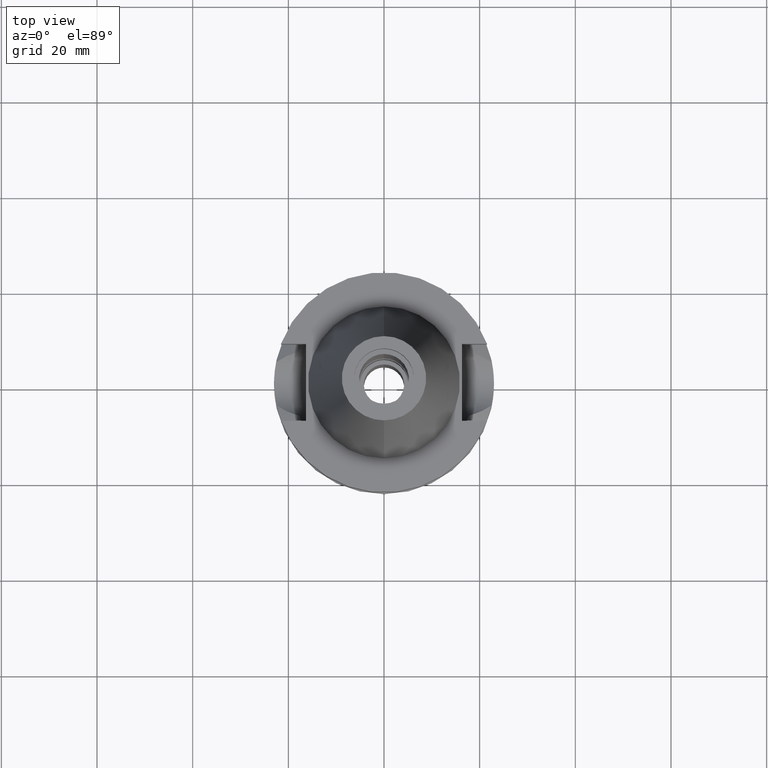
[diagram: clean part render]
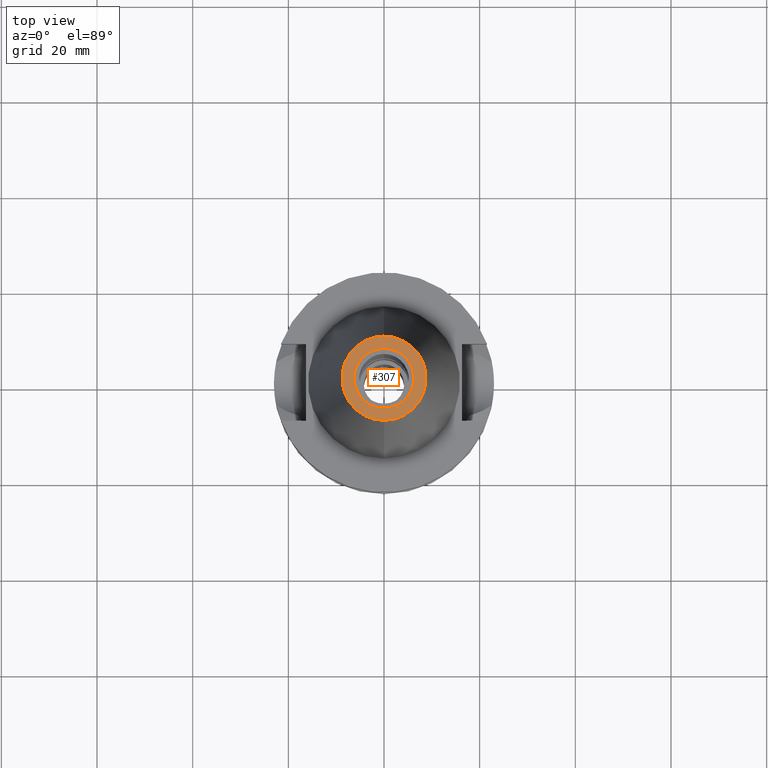
[diagram: same view with one face highlighted and labeled with its STEP entity id]
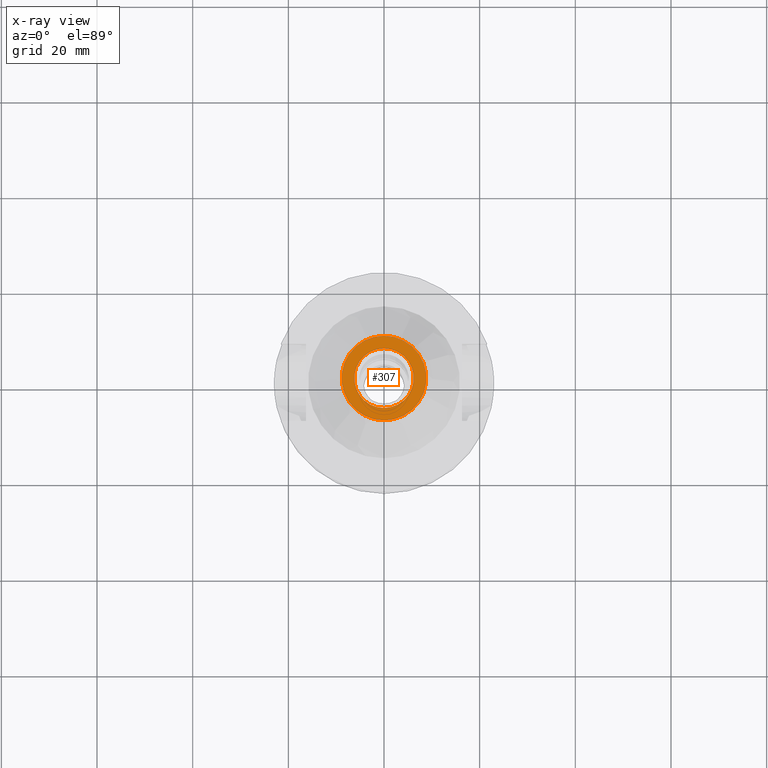
[diagram: x-ray of the same camera — body ghosted, the highlighted face saturated]
A machine part, top view. The second image highlights one B-rep face of the part: STEP entity #307.
The next image is the same camera in x-ray: the body ghosted, the highlighted face saturated — about 0% of this face is hidden behind the body in this view.
In plain terms, the highlighted planar face has unit normal (0, 0, -1).
Its self-contained STEP definition (entity closure, byte-faithful):
#42 = CARTESIAN_POINT ( 'NONE',  ( 0.0000000000000000000, 1.521011324540999938E-14, 48.39999999999999858 ) ) ;
#152 = FACE_BOUND ( 'NONE', #1157, .T. ) ;
#160 = EDGE_CURVE ( 'NONE', #2453, #1522, #2528, .T. ) ;
#307 = ADVANCED_FACE ( 'NONE', ( #1078, #152 ), #2783, .F. ) ;
#491 = AXIS2_PLACEMENT_3D ( 'NONE', #42, #2411, #1480 ) ;
#512 = CARTESIAN_POINT ( 'NONE',  ( 0.0000000000000000000, 1.896610497840000171E-14, 48.39999999999999858 ) ) ;
#627 = CARTESIAN_POINT ( 'NONE',  ( 0.0000000000000000000, 1.521011324540999938E-14, 48.39999999999999858 ) ) ;
#655 = DIRECTION ( 'NONE',  ( 0.0000000000000000000, 0.0000000000000000000, -1.000000000000000000 ) ) ;
#656 = EDGE_CURVE ( 'NONE', #1522, #2453, #2561, .T. ) ;
#694 = DIRECTION ( 'NONE',  ( 0.0000000000000000000, 1.000000000000000000, 0.0000000000000000000 ) ) ;
#759 = DIRECTION ( 'NONE',  ( 0.0000000000000000000, 1.000000000000000000, 0.0000000000000000000 ) ) ;
#855 = ORIENTED_EDGE ( 'NONE', *, *, #160, .F. ) ;
#894 = CIRCLE ( 'NONE', #2635, 6.250000000000000000 ) ;
#924 = VERTEX_POINT ( 'NONE', #2349 ) ;
#1006 = DIRECTION ( 'NONE',  ( 0.0000000000000000000, 0.0000000000000000000, 1.000000000000000000 ) ) ;
#1078 = FACE_OUTER_BOUND ( 'NONE', #1150, .T. ) ;
#1123 = CARTESIAN_POINT ( 'NONE',  ( 0.0000000000000000000, 1.817375849934999910E-14, 48.39999999999999858 ) ) ;
#1150 = EDGE_LOOP ( 'NONE', ( #855, #1886 ) ) ;
#1157 = EDGE_LOOP ( 'NONE', ( #2089, #1915 ) ) ;
#1308 = VERTEX_POINT ( 'NONE', #1904 ) ;
#1369 = EDGE_CURVE ( 'NONE', #924, #1308, #894, .T. ) ;
#1413 = EDGE_CURVE ( 'NONE', #1308, #924, #2268, .T. ) ;
#1467 = DIRECTION ( 'NONE',  ( 0.0000000000000000000, 0.0000000000000000000, 1.000000000000000000 ) ) ;
#1480 = DIRECTION ( 'NONE',  ( 0.0000000000000000000, -1.000000000000000000, 0.0000000000000000000 ) ) ;
#1522 = VERTEX_POINT ( 'NONE', #2900 ) ;
#1564 = DIRECTION ( 'NONE',  ( 0.0000000000000000000, -1.000000000000000000, 0.0000000000000000000 ) ) ;
#1609 = AXIS2_PLACEMENT_3D ( 'NONE', #2381, #1006, #759 ) ;
#1699 = AXIS2_PLACEMENT_3D ( 'NONE', #1123, #655, #1564 ) ;
#1886 = ORIENTED_EDGE ( 'NONE', *, *, #656, .F. ) ;
#1889 = AXIS2_PLACEMENT_3D ( 'NONE', #627, #2821, #694 ) ;
#1904 = CARTESIAN_POINT ( 'NONE',  ( 0.0000000000000000000, 6.250000000000000000, 48.39999999999999858 ) ) ;
#1915 = ORIENTED_EDGE ( 'NONE', *, *, #1369, .F. ) ;
#2089 = ORIENTED_EDGE ( 'NONE', *, *, #1413, .F. ) ;
#2197 = DIRECTION ( 'NONE',  ( 0.0000000000000000000, -1.000000000000000000, 0.0000000000000000000 ) ) ;
#2268 = CIRCLE ( 'NONE', #1609, 6.250000000000000000 ) ;
#2349 = CARTESIAN_POINT ( 'NONE',  ( 0.0000000000000000000, -6.250000000000000000, 48.39999999999999858 ) ) ;
#2381 = CARTESIAN_POINT ( 'NONE',  ( 0.0000000000000000000, 1.896610497840000171E-14, 48.39999999999999858 ) ) ;
#2411 = DIRECTION ( 'NONE',  ( 0.0000000000000000000, 0.0000000000000000000, -1.000000000000000000 ) ) ;
#2453 = VERTEX_POINT ( 'NONE', #3028 ) ;
#2528 = CIRCLE ( 'NONE', #1889, 8.816791732783000768 ) ;
#2561 = CIRCLE ( 'NONE', #491, 8.816791732783000768 ) ;
#2635 = AXIS2_PLACEMENT_3D ( 'NONE', #512, #1467, #2197 ) ;
#2783 = PLANE ( 'NONE',  #1699 ) ;
#2821 = DIRECTION ( 'NONE',  ( 0.0000000000000000000, 0.0000000000000000000, -1.000000000000000000 ) ) ;
#2900 = CARTESIAN_POINT ( 'NONE',  ( 0.0000000000000000000, -8.816791732783000768, 48.39999999999999858 ) ) ;
#3028 = CARTESIAN_POINT ( 'NONE',  ( 0.0000000000000000000, 8.816791732783000768, 48.39999999999999858 ) ) ;